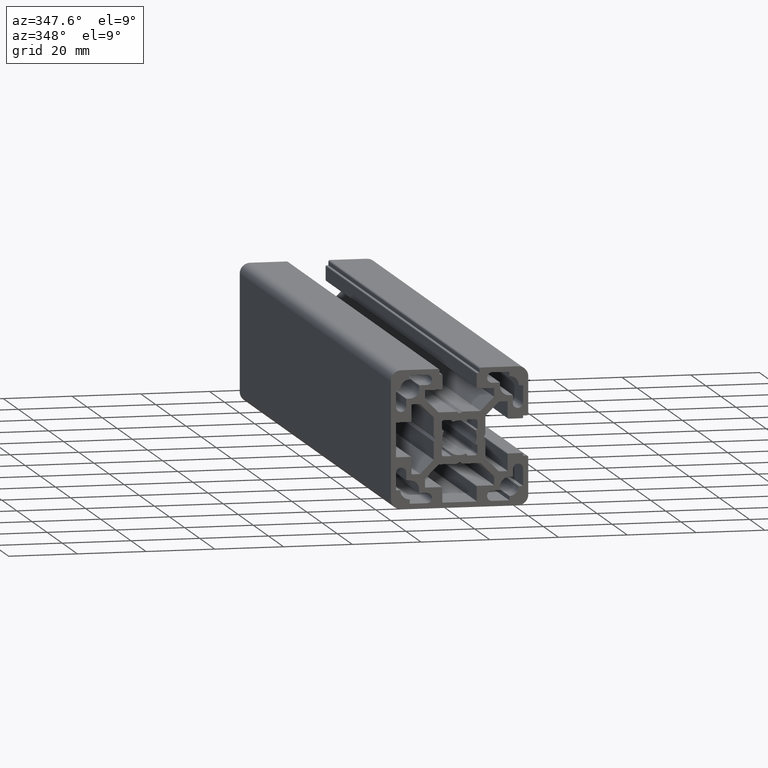
[diagram: clean part render]
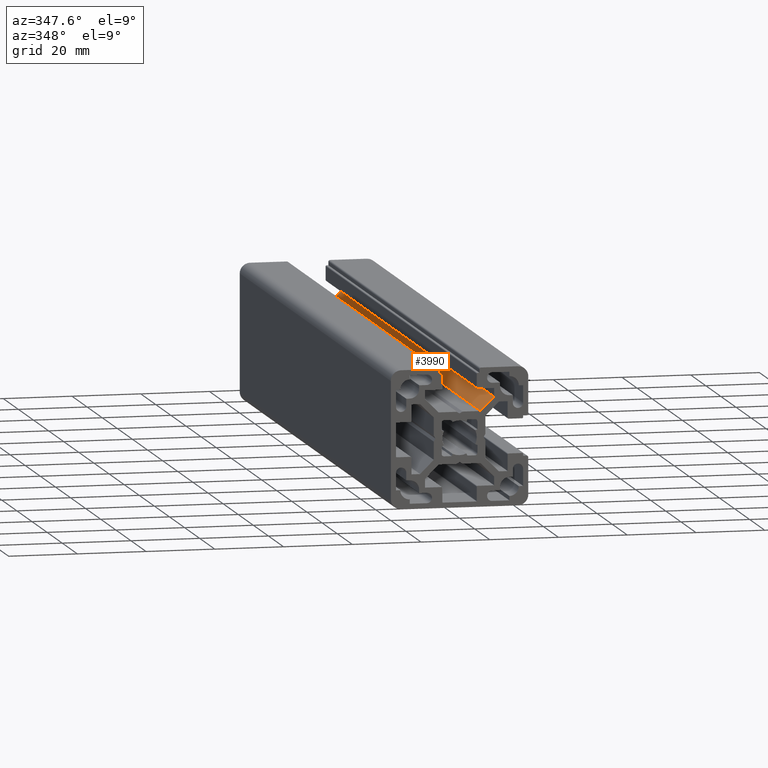
[diagram: same view with one face highlighted and labeled with its STEP entity id]
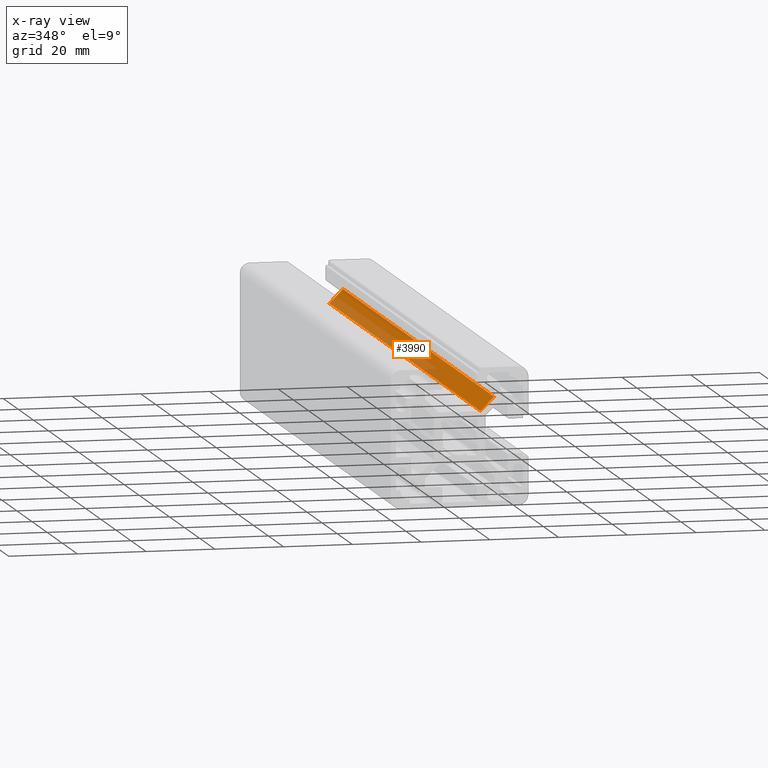
[diagram: x-ray of the same camera — body ghosted, the highlighted face saturated]
A machine part, auxiliary view. The second image highlights one B-rep face of the part: STEP entity #3990.
The next image is the same camera in x-ray: the body ghosted, the highlighted face saturated — about 44% of this face is hidden behind the body in this view.
In plain terms, the highlighted planar face has unit normal (-0.7071, 0, 0.7071).
Its self-contained STEP definition (entity closure, byte-faithful):
#44 = VERTEX_POINT ( 'NONE', #4011 ) ;
#55 = EDGE_CURVE ( 'NONE', #44, #918, #1239, .T. ) ;
#142 = DIRECTION ( 'NONE',  ( 0.7071067811865020500, 0.0000000000000000000, 0.7071067811865929800 ) ) ;
#147 = CARTESIAN_POINT ( 'NONE',  ( 10.05015266879990100, 0.0000000000000000000, 11.46436623120020000 ) ) ;
#296 = LINE ( 'NONE', #4405, #1989 ) ;
#375 = VERTEX_POINT ( 'NONE', #3799 ) ;
#486 = VECTOR ( 'NONE', #4501, 1000.000000000000000 ) ;
#918 = VERTEX_POINT ( 'NONE', #2096 ) ;
#1205 = VECTOR ( 'NONE', #4560, 1000.000000000000100 ) ;
#1239 = LINE ( 'NONE', #2702, #4215 ) ;
#1396 = CARTESIAN_POINT ( 'NONE',  ( 6.085676416530019700, 0.0000000000000000000, 7.499889978929809700 ) ) ;
#1481 = LINE ( 'NONE', #1515, #1205 ) ;
#1515 = CARTESIAN_POINT ( 'NONE',  ( 6.085676416530019700, 200.0000000000000000, 7.499889978929809700 ) ) ;
#1524 = ORIENTED_EDGE ( 'NONE', *, *, #2998, .T. ) ;
#1595 = ORIENTED_EDGE ( 'NONE', *, *, #5214, .F. ) ;
#1598 = VERTEX_POINT ( 'NONE', #4913 ) ;
#1989 = VECTOR ( 'NONE', #142, 1000.000000000000000 ) ;
#2096 = CARTESIAN_POINT ( 'NONE',  ( 6.085676416530018800, 0.0000000000000000000, 7.499889978929809700 ) ) ;
#2261 = DIRECTION ( 'NONE',  ( -0.7071067811865929800, 0.0000000000000000000, 0.7071067811865020500 ) ) ;
#2616 = EDGE_LOOP ( 'NONE', ( #1524, #2854, #1595, #4525 ) ) ;
#2702 = CARTESIAN_POINT ( 'NONE',  ( 6.085676416530019700, 0.0000000000000000000, 7.499889978929809700 ) ) ;
#2854 = ORIENTED_EDGE ( 'NONE', *, *, #3559, .F. ) ;
#2998 = EDGE_CURVE ( 'NONE', #918, #1598, #296, .T. ) ;
#3559 = EDGE_CURVE ( 'NONE', #375, #1598, #5153, .T. ) ;
#3565 = PLANE ( 'NONE',  #4550 ) ;
#3588 = DIRECTION ( 'NONE',  ( -0.0000000000000000000, -1.000000000000000000, 0.0000000000000000000 ) ) ;
#3799 = CARTESIAN_POINT ( 'NONE',  ( 10.05015266879990100, 200.0000000000000000, 11.46436623120019900 ) ) ;
#3990 = ADVANCED_FACE ( 'NONE', ( #4080 ), #3565, .T. ) ;
#4011 = CARTESIAN_POINT ( 'NONE',  ( 6.085676416530019700, 200.0000000000000000, 7.499889978929809700 ) ) ;
#4080 = FACE_OUTER_BOUND ( 'NONE', #2616, .T. ) ;
#4215 = VECTOR ( 'NONE', #3588, 1000.000000000000000 ) ;
#4405 = CARTESIAN_POINT ( 'NONE',  ( 6.085676416530019700, 0.0000000000000000000, 7.499889978929809700 ) ) ;
#4501 = DIRECTION ( 'NONE',  ( -0.0000000000000000000, -1.000000000000000000, 0.0000000000000000000 ) ) ;
#4525 = ORIENTED_EDGE ( 'NONE', *, *, #55, .T. ) ;
#4550 = AXIS2_PLACEMENT_3D ( 'NONE', #1396, #2261, #5305 ) ;
#4560 = DIRECTION ( 'NONE',  ( 0.7071067811865020500, 0.0000000000000000000, 0.7071067811865929800 ) ) ;
#4913 = CARTESIAN_POINT ( 'NONE',  ( 10.05015266879990100, 0.0000000000000000000, 11.46436623120020000 ) ) ;
#5153 = LINE ( 'NONE', #147, #486 ) ;
#5214 = EDGE_CURVE ( 'NONE', #44, #375, #1481, .T. ) ;
#5305 = DIRECTION ( 'NONE',  ( 0.7071067811865020500, 0.0000000000000000000, 0.7071067811865929800 ) ) ;